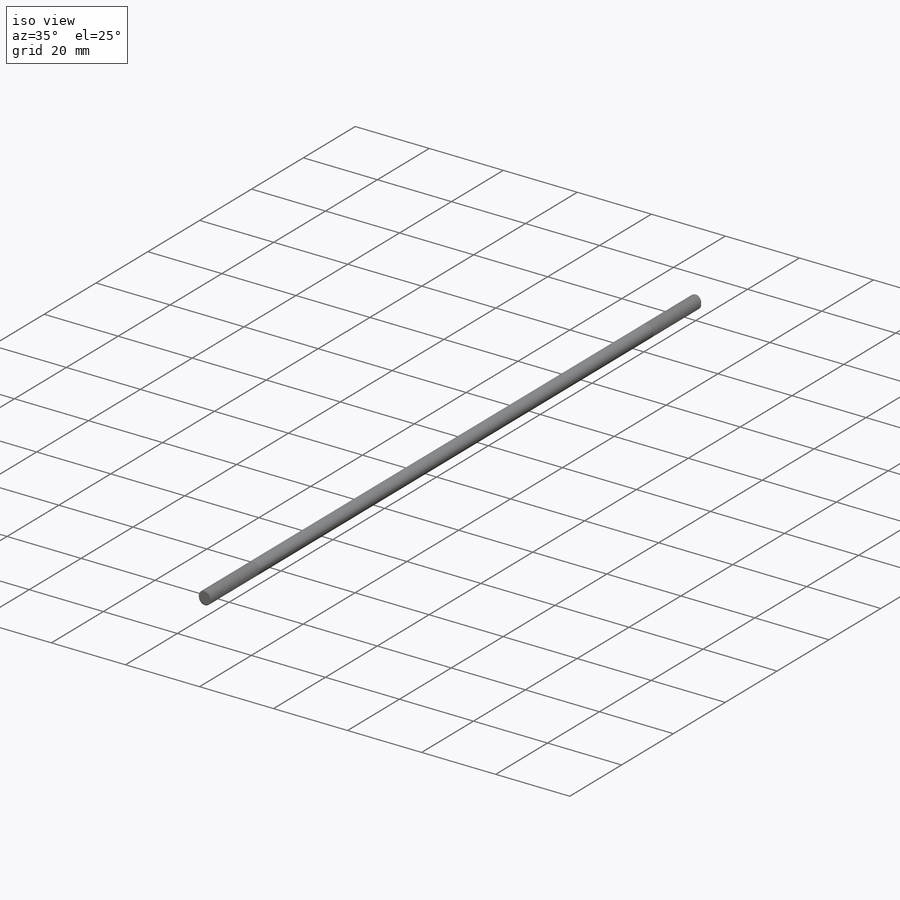
[diagram: iso view]
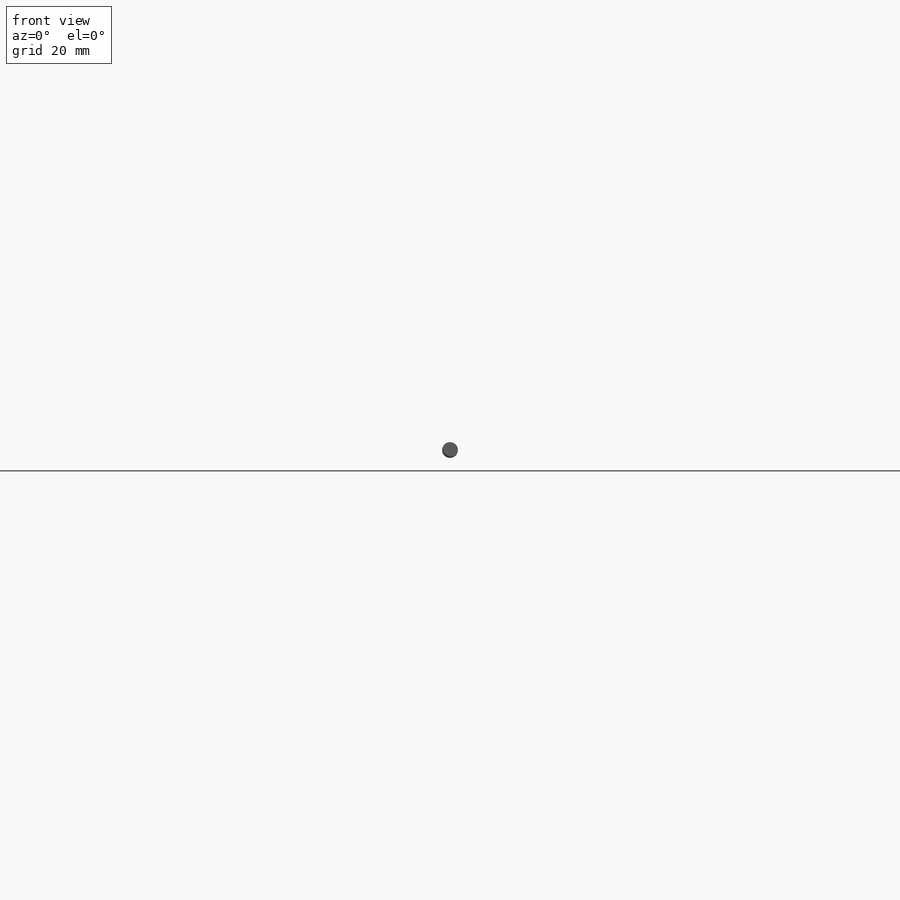
[diagram: front view]
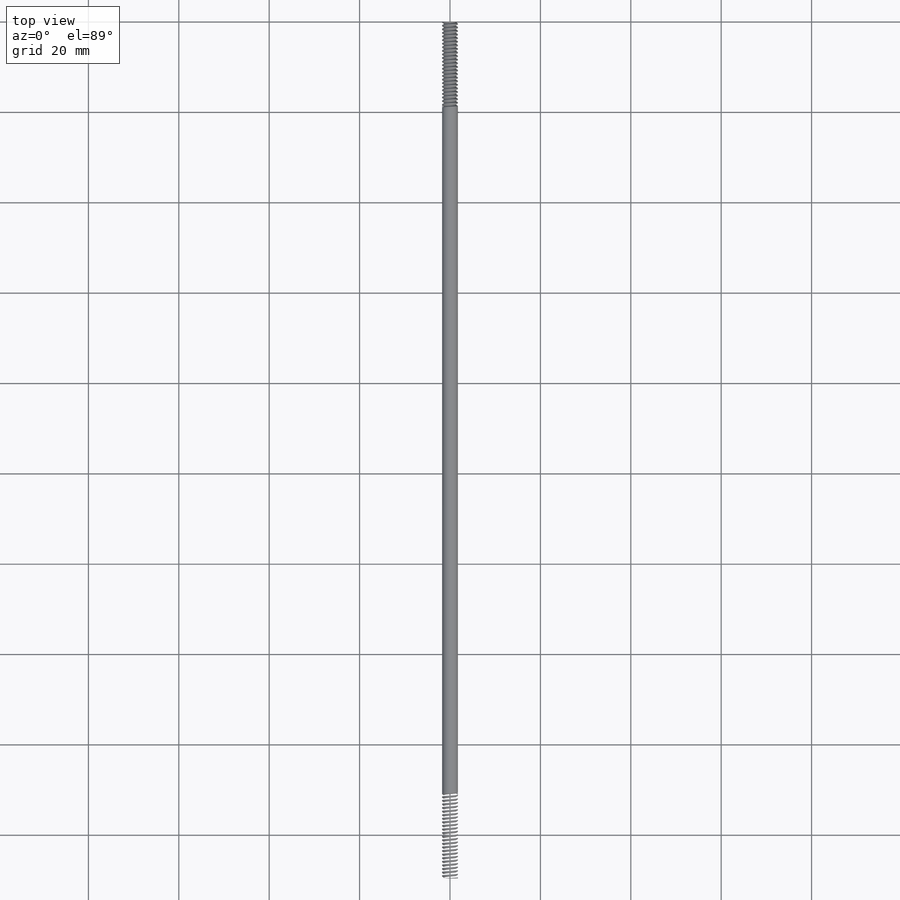
[diagram: top view]
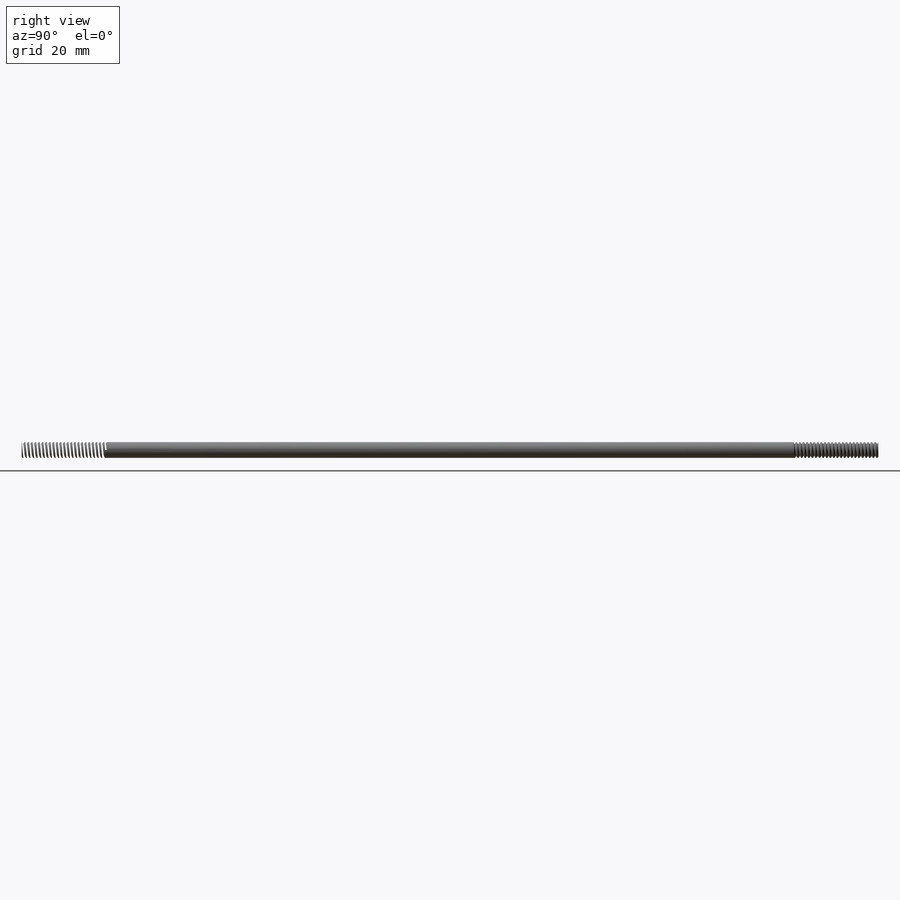
[diagram: right view]
SOLIDWORKS PART (.sldprt)
format: sldprt  version: not decoded by parser v0  size: 1,073,152 bytes
history: native  units: mm
features: sketch x5, helix x2, sweep x2, material x1, extrude x1 (+13 scaffold rows collapsed)
feature tree (24):
  scaffold x13  (default folders/planes/origin — collapsed)
  material  "6061 Alloy"
  sketch  "Sketch1"  dims[D1=3.5052mm]
  extrude  "Rod"  Depth=189.593484mm
  sketch  "Sketch2"
  helix  "Helix/Spiral1"  Pitch=19.05mm
  sketch  "Sketch4"  dims[c1.D1=0.3175mm c1.D2=~0.079375mm c1.D3=~0.797628mm c2.D3=60.0deg]
  sweep  "Thread 1"
  sketch  "Sketch6"  dims[c1.D1=0.3175mm c1.D2=~0.079375mm c1.D3=~0.797628mm c2.D3=60.0deg c2.D1=~0.079375mm c2.D2=0.3175mm c3.D3=~0.241764mm c4.D3=60.0deg]
  sketch  "Sketch5"  dims[D1=0.0mm]
  helix  "Helix/Spiral2"  Pitch=19.05mm
  sweep  "Thread 2"
decode coverage: 7 of 10 modeling features carry decoded parameters
note: ~ marks probable driven/reference dimensions
note: suppression state not decoded; provenance and decode notes live in map.json
